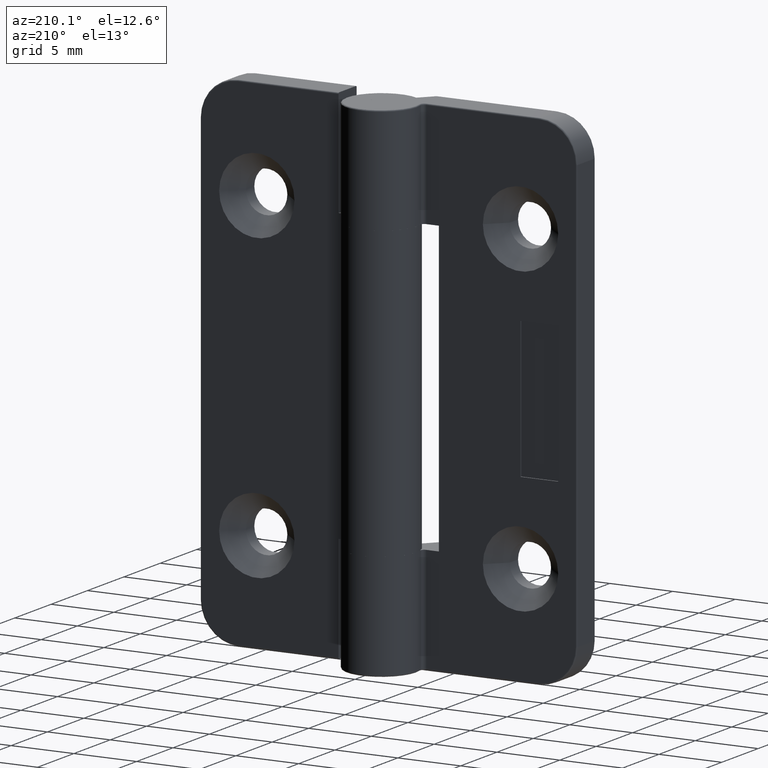
[diagram: clean part render]
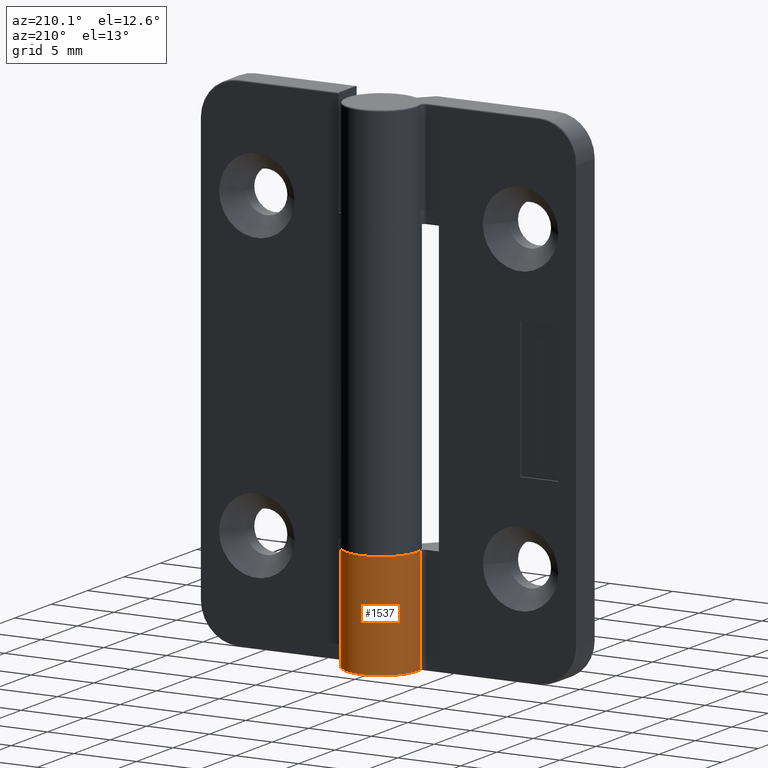
[diagram: same view with one face highlighted and labeled with its STEP entity id]
A machine part, auxiliary view. The second image highlights one B-rep face of the part: STEP entity #1537.
In plain terms, the highlighted cylindrical surface (partial cylindrical patch) has radius 2.8 mm, axis along (0, 0, 1).
Its self-contained STEP definition (entity closure, byte-faithful):
#88=CYLINDRICAL_SURFACE('',#1652,2.8);
#126=CIRCLE('',#1635,2.8);
#139=CIRCLE('',#1653,2.8);
#226=FACE_OUTER_BOUND('',#324,.T.);
#324=EDGE_LOOP('',(#1134,#1135,#1136,#1137));
#463=LINE('',#2437,#589);
#465=LINE('',#2445,#591);
#589=VECTOR('',#1915,8.4);
#591=VECTOR('',#1925,8.4);
#701=VERTEX_POINT('',#2396);
#702=VERTEX_POINT('',#2398);
#718=VERTEX_POINT('',#2436);
#720=VERTEX_POINT('',#2444);
#858=EDGE_CURVE('',#702,#701,#126,.T.);
#877=EDGE_CURVE('',#718,#702,#463,.T.);
#881=EDGE_CURVE('',#720,#701,#465,.T.);
#882=EDGE_CURVE('',#718,#720,#139,.T.);
#1134=ORIENTED_EDGE('',*,*,#858,.T.);
#1135=ORIENTED_EDGE('',*,*,#881,.F.);
#1136=ORIENTED_EDGE('',*,*,#882,.F.);
#1137=ORIENTED_EDGE('',*,*,#877,.T.);
#1537=ADVANCED_FACE('',(#226),#88,.T.);
#1635=AXIS2_PLACEMENT_3D('',#2399,#1879,#1880);
#1652=AXIS2_PLACEMENT_3D('',#2443,#1923,#1924);
#1653=AXIS2_PLACEMENT_3D('',#2446,#1926,#1927);
#1879=DIRECTION('center_axis',(0.,0.,-1.));
#1880=DIRECTION('ref_axis',(1.,0.,0.));
#1915=DIRECTION('',(0.,0.,1.));
#1923=DIRECTION('center_axis',(0.,0.,1.));
#1924=DIRECTION('ref_axis',(1.,0.,0.));
#1925=DIRECTION('',(0.,0.,1.));
#1926=DIRECTION('center_axis',(0.,0.,-1.));
#1927=DIRECTION('ref_axis',(0.813977108855373,0.580896949776334,0.));
#2396=CARTESIAN_POINT('',(-1.5,1.13568191649262,-11.5));
#2398=CARTESIAN_POINT('',(-2.72354948805461,2.85017064846416,-11.5));
#2399=CARTESIAN_POINT('Origin',(0.,3.5,-11.5));
#2436=CARTESIAN_POINT('',(-2.72354948805461,2.85017064846416,-19.9));
#2437=CARTESIAN_POINT('',(-2.72354948805461,2.85017064846416,0.));
#2443=CARTESIAN_POINT('Origin',(0.,3.5,0.));
#2444=CARTESIAN_POINT('',(-1.5,1.13568191649262,-19.9));
#2445=CARTESIAN_POINT('',(-1.5,1.13568191649262,0.));
#2446=CARTESIAN_POINT('Origin',(0.,3.5,-19.9));